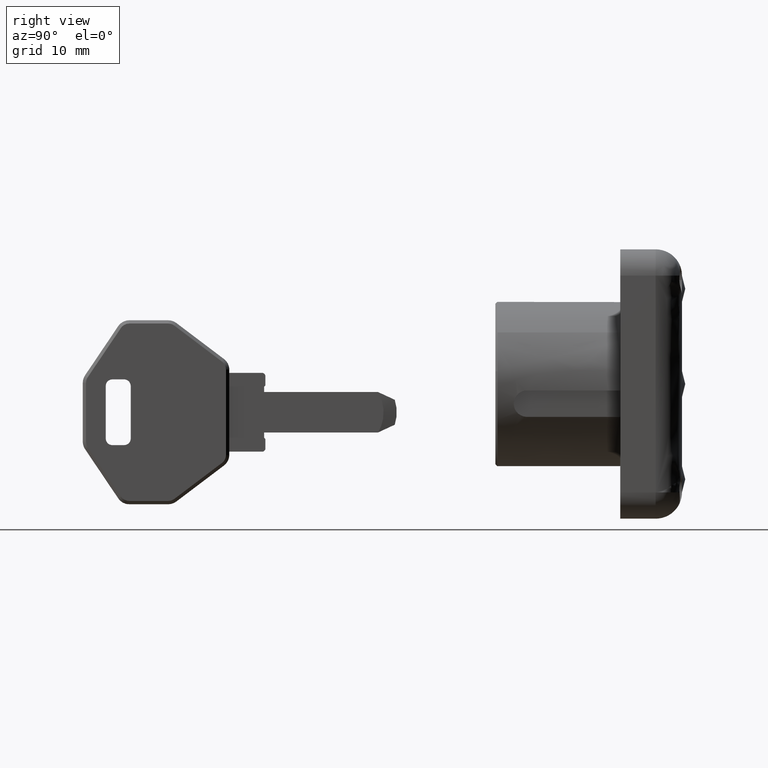
[diagram: clean part render]
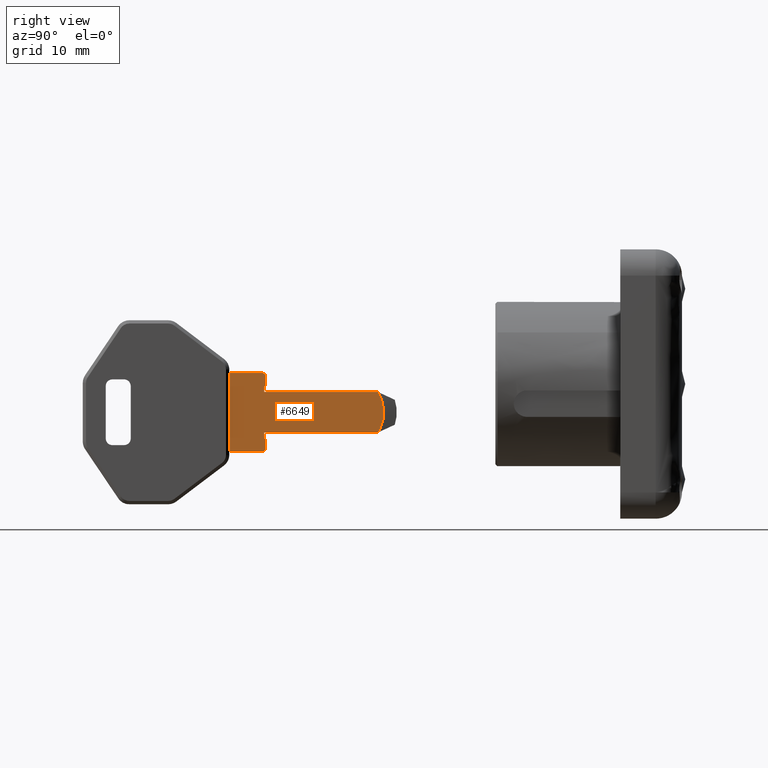
[diagram: same view with one face highlighted and labeled with its STEP entity id]
A machine part, right view. The second image highlights one B-rep face of the part: STEP entity #6649.
In plain terms, the highlighted face is a freeform B-spline surface patch.
Its self-contained STEP definition (entity closure, byte-faithful):
#4053=CARTESIAN_POINT('',(-46.257221478982302,-0.900000000000012,1.774999999944770));
#4054=VERTEX_POINT('',#4053);
#4064=CARTESIAN_POINT('',(-46.257221479003398,-0.900000000000000,-4.375000000063496));
#4065=VERTEX_POINT('',#4064);
#4066=CARTESIAN_POINT('',(-46.257221478982302,-0.900000000000012,1.774999999944770));
#4067=CARTESIAN_POINT('',(-44.421934479820166,-0.900000000000000,-1.300000000065660));
#4068=CARTESIAN_POINT('',(-46.257221479003377,-0.900000000000000,-4.375000000063503));
#4076=(BOUNDED_CURVE()B_SPLINE_CURVE(2,(#4066,#4067,#4068),.UNSPECIFIED.,.F.,.U.)CURVE()GEOMETRIC_REPRESENTATION_ITEM()QUASI_UNIFORM_CURVE()RATIONAL_B_SPLINE_CURVE((1.0,0.858687224779782,1.0))REPRESENTATION_ITEM(''));
#4077=EDGE_CURVE('',#4054,#4065,#4076,.T.);
#4831=CARTESIAN_POINT('',(-68.909344827680201,-0.900000000000012,4.699999999920761));
#4832=VERTEX_POINT('',#4831);
#4833=CARTESIAN_POINT('',(-68.909344827680300,-0.900000000000012,-7.300000000079240));
#4834=VERTEX_POINT('',#4833);
#4835=CARTESIAN_POINT('',(-68.909344827680201,-0.900000000000012,4.699999999920761));
#4836=CARTESIAN_POINT('',(-68.909344827680300,-0.900000000000012,-7.300000000079240));
#4837=QUASI_UNIFORM_CURVE('',1,(#4835,#4836),.UNSPECIFIED.,.F.,.U.);
#4838=EDGE_CURVE('',#4832,#4834,#4837,.T.);
#5493=CARTESIAN_POINT('',(-63.909344827680101,-0.900000000000012,4.699999999919481));
#5494=VERTEX_POINT('',#5493);
#5495=CARTESIAN_POINT('',(-63.909344827680101,-0.900000000000012,4.699999999919481));
#5496=CARTESIAN_POINT('',(-68.909344827680201,-0.900000000000012,4.699999999920761));
#5497=QUASI_UNIFORM_CURVE('',1,(#5495,#5496),.UNSPECIFIED.,.F.,.U.);
#5498=EDGE_CURVE('',#5494,#4832,#5497,.T.);
#5534=CARTESIAN_POINT('',(-63.409344827680208,-0.900000000000012,4.199999999919485));
#5535=VERTEX_POINT('',#5534);
#5536=CARTESIAN_POINT('',(-63.409344827680087,-0.900000000000012,4.199999999919485));
#5537=CARTESIAN_POINT('',(-63.409344827680094,-0.900000000000012,4.699999999919487));
#5538=CARTESIAN_POINT('',(-63.909344827680101,-0.900000000000012,4.699999999919486));
#5546=(BOUNDED_CURVE()B_SPLINE_CURVE(2,(#5536,#5537,#5538),.UNSPECIFIED.,.F.,.U.)CURVE()GEOMETRIC_REPRESENTATION_ITEM()QUASI_UNIFORM_CURVE()RATIONAL_B_SPLINE_CURVE((1.0,0.707106781186548,1.0))REPRESENTATION_ITEM(''));
#5547=EDGE_CURVE('',#5535,#5494,#5546,.T.);
#5578=CARTESIAN_POINT('',(-63.409344827679803,-0.900000000000012,2.774999999949175));
#5579=VERTEX_POINT('',#5578);
#5580=CARTESIAN_POINT('',(-63.409344827679803,-0.900000000000012,2.774999999949175));
#5581=CARTESIAN_POINT('',(-63.409344827680208,-0.900000000000012,4.199999999919485));
#5582=QUASI_UNIFORM_CURVE('',1,(#5580,#5581),.UNSPECIFIED.,.F.,.U.);
#5583=EDGE_CURVE('',#5579,#5535,#5582,.T.);
#5606=CARTESIAN_POINT('',(-63.609344827680196,-0.900000000000012,2.574999999949270));
#5607=VERTEX_POINT('',#5606);
#5608=CARTESIAN_POINT('',(-63.609344827680196,-0.900000000000012,2.574999999949270));
#5609=CARTESIAN_POINT('',(-63.409344827679803,-0.900000000000012,2.774999999949175));
#5610=QUASI_UNIFORM_CURVE('',1,(#5608,#5609),.UNSPECIFIED.,.F.,.U.);
#5611=EDGE_CURVE('',#5607,#5579,#5610,.T.);
#5634=CARTESIAN_POINT('',(-63.609344827680196,-0.900000000000012,1.774999999949175));
#5635=VERTEX_POINT('',#5634);
#5636=CARTESIAN_POINT('',(-63.609344827680196,-0.900000000000012,1.774999999949175));
#5637=CARTESIAN_POINT('',(-63.609344827680196,-0.900000000000012,2.574999999949270));
#5638=QUASI_UNIFORM_CURVE('',1,(#5636,#5637),.UNSPECIFIED.,.F.,.U.);
#5639=EDGE_CURVE('',#5635,#5607,#5638,.T.);
#5662=CARTESIAN_POINT('',(-46.257221478982302,-0.900000000000012,1.774999999944770));
#5663=CARTESIAN_POINT('',(-63.609344827680196,-0.900000000000012,1.774999999949175));
#5664=QUASI_UNIFORM_CURVE('',1,(#5662,#5663),.UNSPECIFIED.,.F.,.U.);
#5665=EDGE_CURVE('',#4054,#5635,#5664,.T.);
#5686=CARTESIAN_POINT('',(-63.609344827680196,-0.900000000000012,-4.375000000050720));
#5687=VERTEX_POINT('',#5686);
#5688=CARTESIAN_POINT('',(-63.609344827680196,-0.900000000000012,-4.375000000050720));
#5689=CARTESIAN_POINT('',(-46.257221479003398,-0.900000000000000,-4.375000000063496));
#5690=QUASI_UNIFORM_CURVE('',1,(#5688,#5689),.UNSPECIFIED.,.F.,.U.);
#5691=EDGE_CURVE('',#5687,#4065,#5690,.T.);
#5718=CARTESIAN_POINT('',(-63.609344827680502,-0.900000000000012,-5.175000000050730));
#5719=VERTEX_POINT('',#5718);
#5720=CARTESIAN_POINT('',(-63.609344827680502,-0.900000000000012,-5.175000000050730));
#5721=CARTESIAN_POINT('',(-63.609344827680196,-0.900000000000012,-4.375000000050720));
#5722=QUASI_UNIFORM_CURVE('',1,(#5720,#5721),.UNSPECIFIED.,.F.,.U.);
#5723=EDGE_CURVE('',#5719,#5687,#5722,.T.);
#5746=CARTESIAN_POINT('',(-63.409344827680208,-0.900000000000012,-5.375000000050920));
#5747=VERTEX_POINT('',#5746);
#5748=CARTESIAN_POINT('',(-63.409344827680208,-0.900000000000012,-5.375000000050920));
#5749=CARTESIAN_POINT('',(-63.609344827680502,-0.900000000000012,-5.175000000050730));
#5750=QUASI_UNIFORM_CURVE('',1,(#5748,#5749),.UNSPECIFIED.,.F.,.U.);
#5751=EDGE_CURVE('',#5747,#5719,#5750,.T.);
#5774=CARTESIAN_POINT('',(-63.409344827680087,-0.900000000000012,-6.800000000080519));
#5775=VERTEX_POINT('',#5774);
#5776=CARTESIAN_POINT('',(-63.409344827680087,-0.900000000000012,-6.800000000080519));
#5777=CARTESIAN_POINT('',(-63.409344827680208,-0.900000000000012,-5.375000000050920));
#5778=QUASI_UNIFORM_CURVE('',1,(#5776,#5777),.UNSPECIFIED.,.F.,.U.);
#5779=EDGE_CURVE('',#5775,#5747,#5778,.T.);
#5811=CARTESIAN_POINT('',(-63.909344827680499,-0.900000000000012,-7.300000000080519));
#5812=VERTEX_POINT('',#5811);
#5813=CARTESIAN_POINT('',(-63.909344827680499,-0.900000000000012,-7.300000000080519));
#5814=CARTESIAN_POINT('',(-63.409344827680094,-0.900000000000012,-7.300000000080519));
#5815=CARTESIAN_POINT('',(-63.409344827680087,-0.900000000000012,-6.800000000080519));
#5823=(BOUNDED_CURVE()B_SPLINE_CURVE(2,(#5813,#5814,#5815),.UNSPECIFIED.,.F.,.U.)CURVE()GEOMETRIC_REPRESENTATION_ITEM()QUASI_UNIFORM_CURVE()RATIONAL_B_SPLINE_CURVE((1.0,0.707106781186548,1.0))REPRESENTATION_ITEM(''));
#5824=EDGE_CURVE('',#5812,#5775,#5823,.T.);
#5855=CARTESIAN_POINT('',(-68.909344827680300,-0.900000000000012,-7.300000000079240));
#5856=CARTESIAN_POINT('',(-63.909344827680499,-0.900000000000012,-7.300000000080519));
#5857=QUASI_UNIFORM_CURVE('',1,(#5855,#5856),.UNSPECIFIED.,.F.,.U.);
#5858=EDGE_CURVE('',#4834,#5812,#5857,.T.);
#6628=CARTESIAN_POINT('',(-70.083172649948438,-0.900000000000000,-7.899400159244654));
#6629=CARTESIAN_POINT('',(-44.235519106470392,-0.900000000000000,-7.899400159244654));
#6630=CARTESIAN_POINT('',(-70.083172649948438,-0.900000000000000,5.299399408066369));
#6631=CARTESIAN_POINT('',(-44.235519106470392,-0.900000000000000,5.299399408066369));
#6632=B_SPLINE_SURFACE_WITH_KNOTS('',1,1,((#6628,#6630),(#6629,#6631)),.UNSPECIFIED.,.F.,.F.,.U.,(2,2),(2,2),(0.0,25.847653543478049),(0.0,13.198799567311021),.UNSPECIFIED.);
#6633=ORIENTED_EDGE('',*,*,#5691,.T.);
#6634=ORIENTED_EDGE('',*,*,#4077,.F.);
#6635=ORIENTED_EDGE('',*,*,#5665,.T.);
#6636=ORIENTED_EDGE('',*,*,#5639,.T.);
#6637=ORIENTED_EDGE('',*,*,#5611,.T.);
#6638=ORIENTED_EDGE('',*,*,#5583,.T.);
#6639=ORIENTED_EDGE('',*,*,#5547,.T.);
#6640=ORIENTED_EDGE('',*,*,#5498,.T.);
#6641=ORIENTED_EDGE('',*,*,#4838,.T.);
#6642=ORIENTED_EDGE('',*,*,#5858,.T.);
#6643=ORIENTED_EDGE('',*,*,#5824,.T.);
#6644=ORIENTED_EDGE('',*,*,#5779,.T.);
#6645=ORIENTED_EDGE('',*,*,#5751,.T.);
#6646=ORIENTED_EDGE('',*,*,#5723,.T.);
#6647=EDGE_LOOP('',(#6633,#6634,#6635,#6636,#6637,#6638,#6639,#6640,#6641,#6642,#6643,#6644,#6645,#6646));
#6648=FACE_OUTER_BOUND('',#6647,.T.);
#6649=ADVANCED_FACE('',(#6648),#6632,.T.);